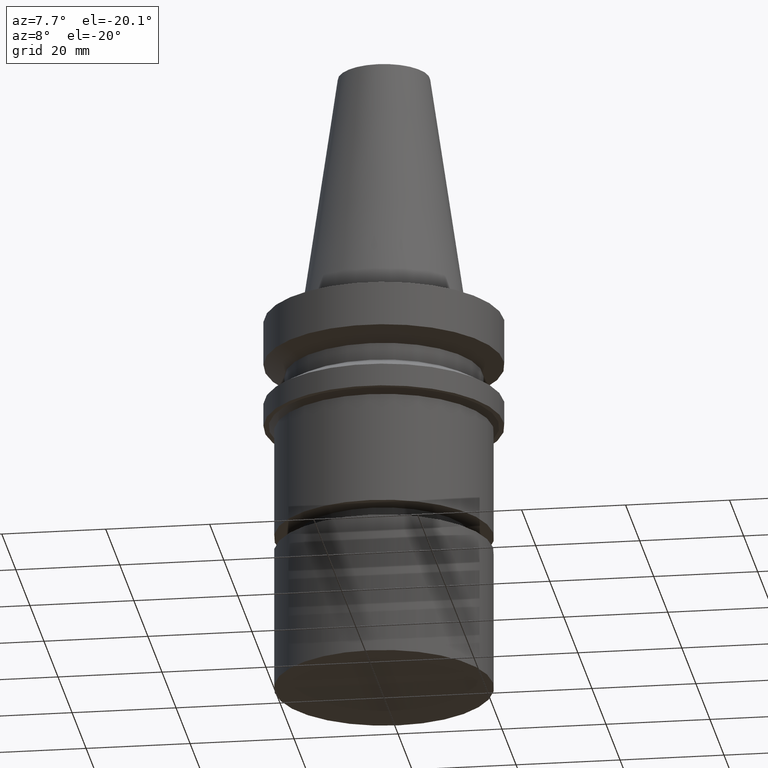
[diagram: clean part render]
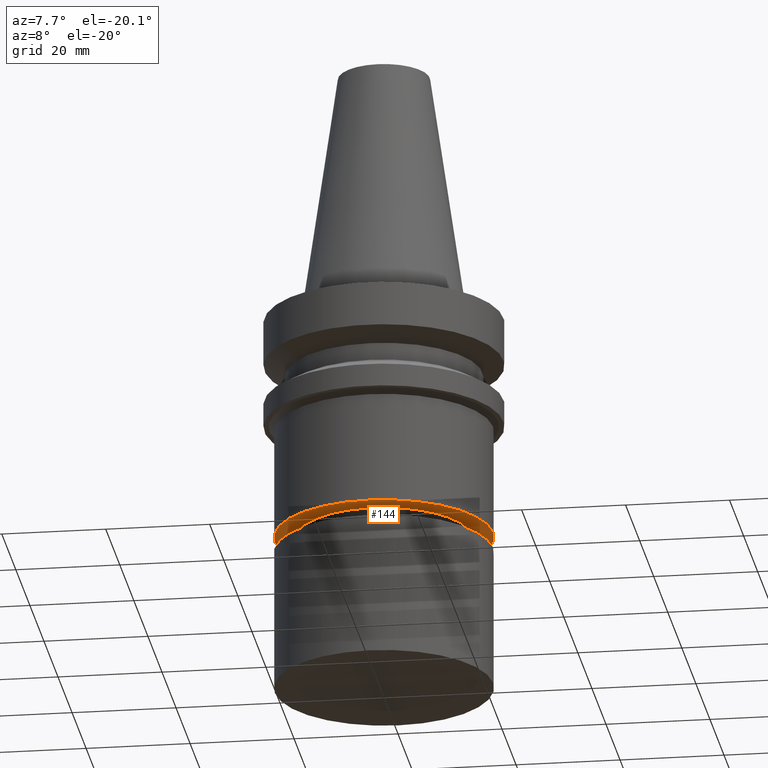
[diagram: same view with one face highlighted and labeled with its STEP entity id]
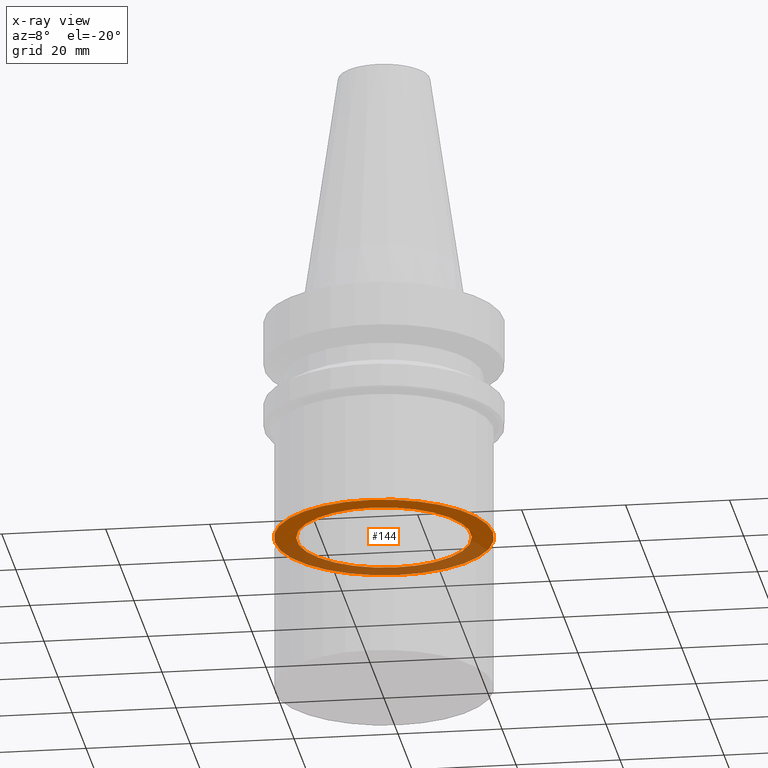
[diagram: x-ray of the same camera — body ghosted, the highlighted face saturated]
A machine part, auxiliary view. The second image highlights one B-rep face of the part: STEP entity #144.
The next image is the same camera in x-ray: the body ghosted, the highlighted face saturated — about 43% of this face is hidden behind the body in this view.
In plain terms, the highlighted planar face has unit normal (0, -0, -1).
Its self-contained STEP definition (entity closure, byte-faithful):
#78=EDGE_CURVE('Unnamed[1]',#206,#206,#207,.T.);
#135=EDGE_CURVE('Unnamed[1]',#294,#294,#295,.T.);
#144=ADVANCED_FACE('Unnamed[1]',(#308,#309),#310,.T.);
#206=VERTEX_POINT('',#383);
#207=CIRCLE('',#384,16.7499999999907);
#294=VERTEX_POINT('',#492);
#295=CIRCLE('',#493,21.0000000000002);
#308=FACE_BOUND('',#509,.T.);
#309=FACE_OUTER_BOUND('',#510,.T.);
#310=PLANE('',#511);
#383=CARTESIAN_POINT('',(2.72483912810281E-015,16.7499999999907,-44.4999999999992));
#384=AXIS2_PLACEMENT_3D('',#586,#587,#588);
#492=CARTESIAN_POINT('',(2.72483912810286E-015,21.0000000000002,-44.5));
#493=AXIS2_PLACEMENT_3D('',#684,#685,#686);
#509=EDGE_LOOP('',(#700));
#510=EDGE_LOOP('',(#701));
#511=AXIS2_PLACEMENT_3D('',#702,#703,#704);
#586=CARTESIAN_POINT('',(2.72483912810281E-015,5.44967825620563E-015,-44.4999999999992));
#587=DIRECTION('',(6.12323399573677E-017,1.22464679914735E-016,-1.0));
#588=DIRECTION('',(-1.23259516440783E-032,1.0,1.22464679914735E-016));
#684=CARTESIAN_POINT('',(2.72483912810286E-015,5.44967825620571E-015,-44.5));
#685=DIRECTION('',(6.12323399573677E-017,1.22464679914735E-016,-1.0));
#686=DIRECTION('',(-1.23259516440783E-032,1.0,1.22464679914735E-016));
#700=ORIENTED_EDGE('',*,*,#78,.F.);
#701=ORIENTED_EDGE('',*,*,#135,.T.);
#702=CARTESIAN_POINT('',(2.72483912810284E-015,18.8749999999955,-44.4999999999996));
#703=DIRECTION('',(6.12323399573677E-017,-1.72079657162739E-013,-1.0));
#704=DIRECTION('',(1.05320129144053E-029,1.0,-1.72079657162739E-013));